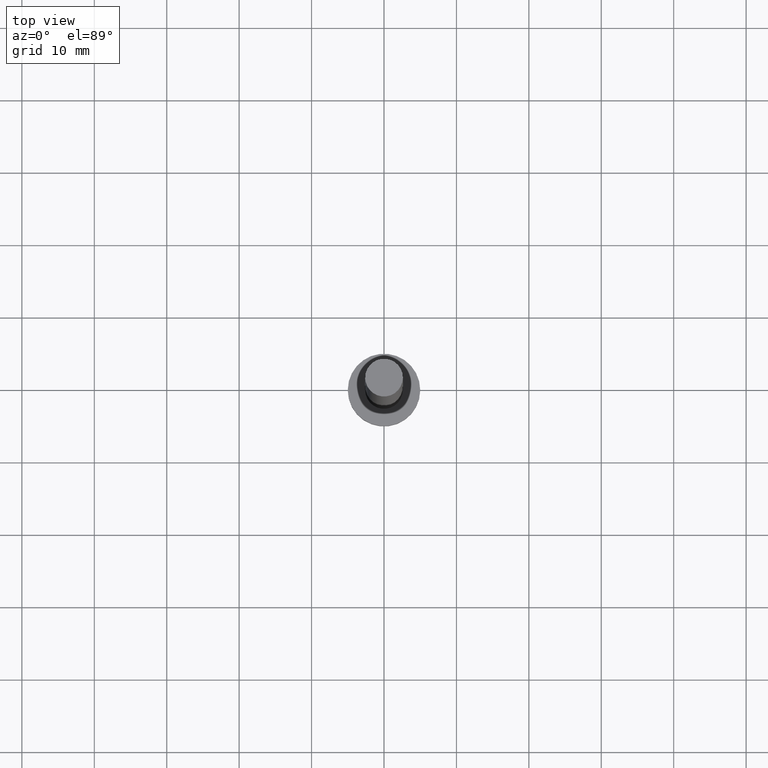
[diagram: clean part render]
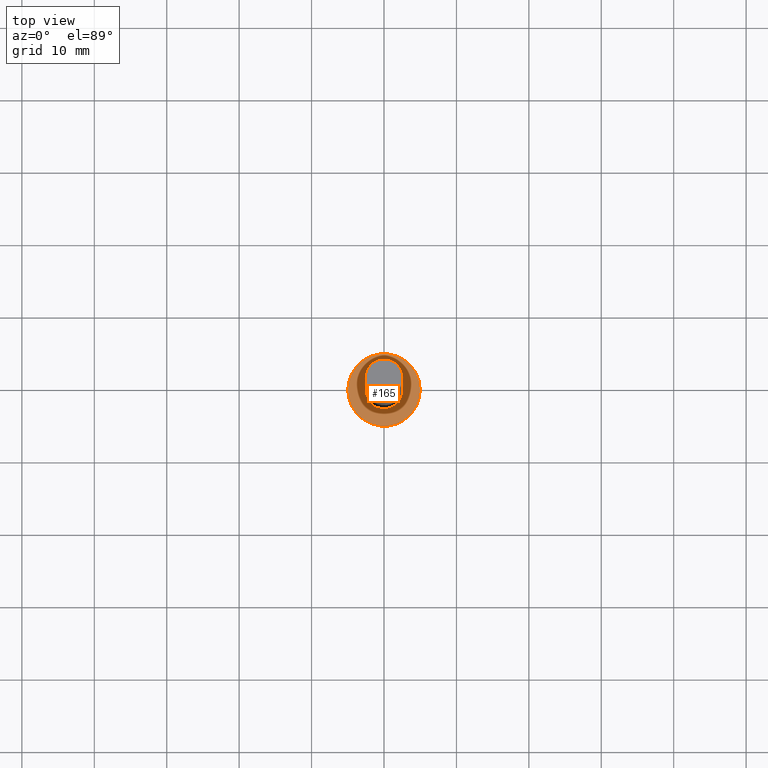
[diagram: same view with one face highlighted and labeled with its STEP entity id]
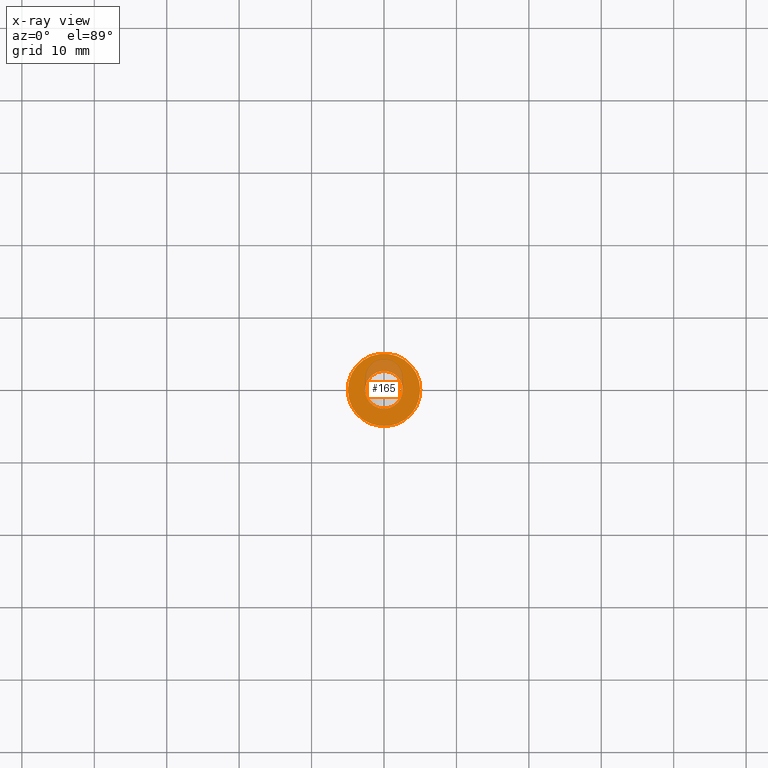
[diagram: x-ray of the same camera — body ghosted, the highlighted face saturated]
A machine part, top view. The second image highlights one B-rep face of the part: STEP entity #165.
The next image is the same camera in x-ray: the body ghosted, the highlighted face saturated — about 16% of this face is hidden behind the body in this view.
In plain terms, the highlighted planar face has unit normal (0, 0, 1).
Its self-contained STEP definition (entity closure, byte-faithful):
#3 = CIRCLE ( 'NONE', #183, 2.600000000000000089 ) ;
#4 = VERTEX_POINT ( 'NONE', #167 ) ;
#16 = DIRECTION ( 'NONE',  ( 1.000000000000000000, 0.000000000000000000, -0.000000000000000000 ) ) ;
#17 = DIRECTION ( 'NONE',  ( 1.000000000000000000, 0.000000000000000000, 0.000000000000000000 ) ) ;
#18 = EDGE_CURVE ( 'NONE', #4, #150, #3, .T. ) ;
#37 = FACE_BOUND ( 'NONE', #158, .T. ) ;
#44 = AXIS2_PLACEMENT_3D ( 'NONE', #116, #109, #16 ) ;
#46 = DIRECTION ( 'NONE',  ( 0.000000000000000000, 0.000000000000000000, 1.000000000000000000 ) ) ;
#48 = ORIENTED_EDGE ( 'NONE', *, *, #74, .T. ) ;
#55 = CIRCLE ( 'NONE', #192, 5.000000000000000000 ) ;
#59 = CARTESIAN_POINT ( 'NONE',  ( 0.000000000000000000, 0.000000000000000000, 3.000000000000000000 ) ) ;
#62 = AXIS2_PLACEMENT_3D ( 'NONE', #245, #141, #242 ) ;
#70 = AXIS2_PLACEMENT_3D ( 'NONE', #59, #172, #170 ) ;
#72 = FACE_OUTER_BOUND ( 'NONE', #230, .T. ) ;
#74 = EDGE_CURVE ( 'NONE', #142, #111, #213, .T. ) ;
#96 = CARTESIAN_POINT ( 'NONE',  ( -2.600000000000000089, 0.000000000000000000, 3.000000000000000000 ) ) ;
#108 = CARTESIAN_POINT ( 'NONE',  ( 0.000000000000000000, 0.000000000000000000, 3.000000000000000000 ) ) ;
#109 = DIRECTION ( 'NONE',  ( 0.000000000000000000, 0.000000000000000000, 1.000000000000000000 ) ) ;
#111 = VERTEX_POINT ( 'NONE', #208 ) ;
#113 = CARTESIAN_POINT ( 'NONE',  ( 0.000000000000000000, 0.000000000000000000, 3.000000000000000000 ) ) ;
#116 = CARTESIAN_POINT ( 'NONE',  ( 0.000000000000000000, 0.000000000000000000, 3.000000000000000000 ) ) ;
#132 = PLANE ( 'NONE',  #44 ) ;
#141 = DIRECTION ( 'NONE',  ( 0.000000000000000000, 0.000000000000000000, 1.000000000000000000 ) ) ;
#142 = VERTEX_POINT ( 'NONE', #210 ) ;
#144 = CIRCLE ( 'NONE', #70, 2.600000000000000089 ) ;
#150 = VERTEX_POINT ( 'NONE', #96 ) ;
#152 = ORIENTED_EDGE ( 'NONE', *, *, #18, .F. ) ;
#158 = EDGE_LOOP ( 'NONE', ( #243, #152 ) ) ;
#163 = EDGE_CURVE ( 'NONE', #111, #142, #55, .T. ) ;
#165 = ADVANCED_FACE ( 'NONE', ( #37, #72 ), #132, .T. ) ;
#167 = CARTESIAN_POINT ( 'NONE',  ( 2.600000000000000089, 3.184081677783117698E-16, 3.000000000000000000 ) ) ;
#170 = DIRECTION ( 'NONE',  ( 1.000000000000000000, 0.000000000000000000, 0.000000000000000000 ) ) ;
#172 = DIRECTION ( 'NONE',  ( 0.000000000000000000, 0.000000000000000000, 1.000000000000000000 ) ) ;
#183 = AXIS2_PLACEMENT_3D ( 'NONE', #108, #46, #204 ) ;
#192 = AXIS2_PLACEMENT_3D ( 'NONE', #113, #207, #17 ) ;
#202 = ORIENTED_EDGE ( 'NONE', *, *, #163, .T. ) ;
#204 = DIRECTION ( 'NONE',  ( 1.000000000000000000, 0.000000000000000000, 0.000000000000000000 ) ) ;
#207 = DIRECTION ( 'NONE',  ( 0.000000000000000000, 0.000000000000000000, 1.000000000000000000 ) ) ;
#208 = CARTESIAN_POINT ( 'NONE',  ( -5.000000000000000000, 0.000000000000000000, 3.000000000000000000 ) ) ;
#210 = CARTESIAN_POINT ( 'NONE',  ( 5.000000000000000000, 6.123233995736766282E-16, 3.000000000000000000 ) ) ;
#213 = CIRCLE ( 'NONE', #62, 5.000000000000000000 ) ;
#215 = EDGE_CURVE ( 'NONE', #150, #4, #144, .T. ) ;
#230 = EDGE_LOOP ( 'NONE', ( #202, #48 ) ) ;
#242 = DIRECTION ( 'NONE',  ( 1.000000000000000000, 0.000000000000000000, 0.000000000000000000 ) ) ;
#243 = ORIENTED_EDGE ( 'NONE', *, *, #215, .F. ) ;
#245 = CARTESIAN_POINT ( 'NONE',  ( 0.000000000000000000, 0.000000000000000000, 3.000000000000000000 ) ) ;